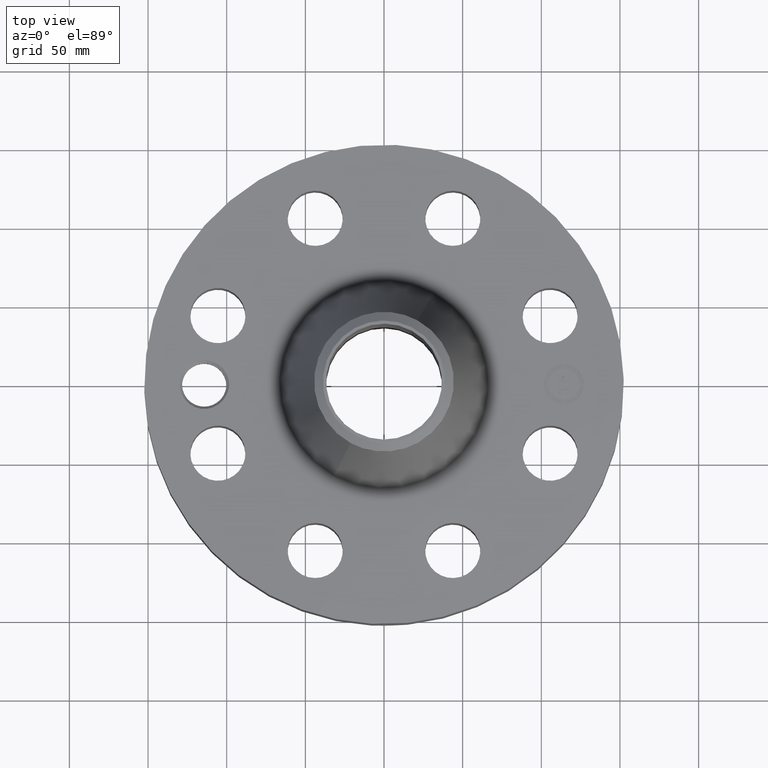
[diagram: clean part render]
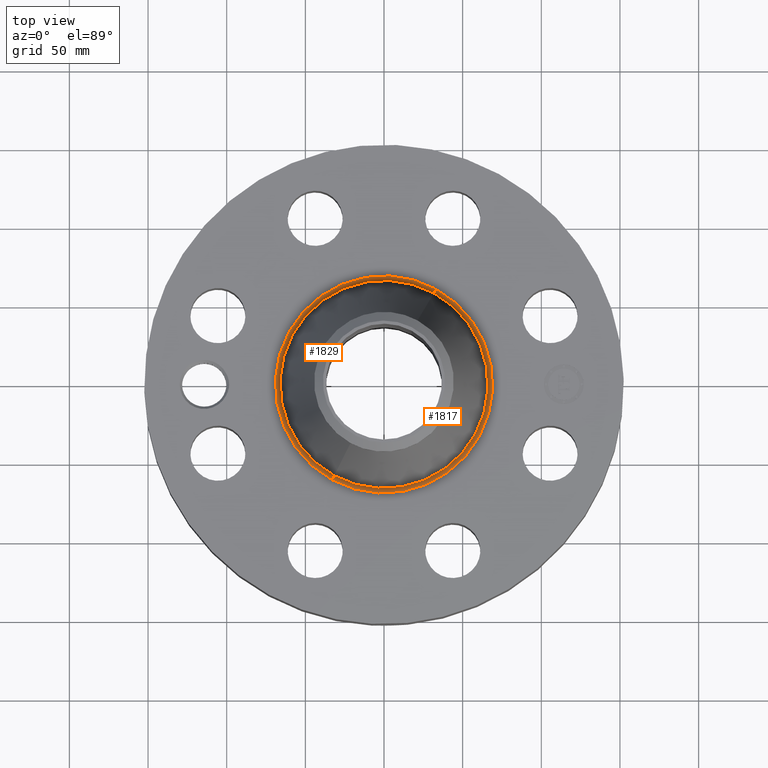
[diagram: same view with one multi-face feature highlighted, each face labeled with its STEP entity id]
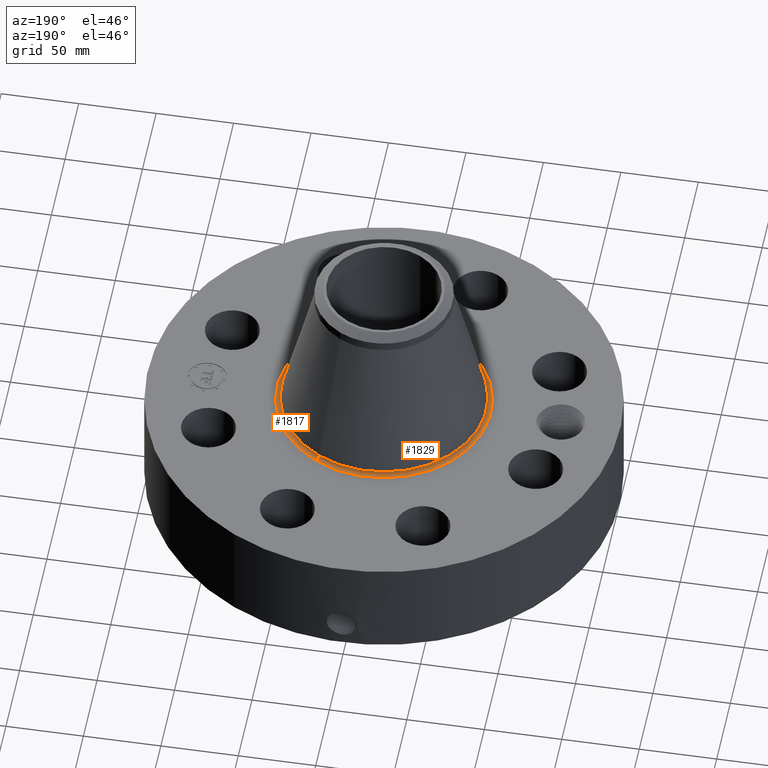
[diagram: same view with one multi-face feature highlighted, each face labeled with its STEP entity id]
A machine part, top view. The highlighted faces form ONE feature: a constant-radius fillet chain: 2 tangent blend faces with common blend radius 3.048 mm. The faces share edges in the B-rep.
A second angle (auxiliary view) of the same feature is appended — it is thin or edge-on in the first view.
Their STEP definitions:
[1] entity #1817 (Torus):
#576=AXIS2_PLACEMENT_3D('Circle Axis2P3D',#574,#575,$) ;
#1790=AXIS2_PLACEMENT_3D('Torus Axis2P3D',#1787,#1788,#1789) ;
#1794=AXIS2_PLACEMENT_3D('Circle Axis2P3D',#1792,#1793,$) ;
#1801=AXIS2_PLACEMENT_3D('Circle Axis2P3D',#1799,#1800,$) ;
#1808=AXIS2_PLACEMENT_3D('Circle Axis2P3D',#1806,#1807,$) ;
#569=CARTESIAN_POINT('Vertex',(-1.30369700467,-2.38640135989,2.87000000001)) ;
#571=CARTESIAN_POINT('Vertex',(1.30369700467,2.38640135989,2.87000000001)) ;
#574=CARTESIAN_POINT('Axis2P3D Location',(0.,0.,2.87000000001)) ;
#1787=CARTESIAN_POINT('Axis2P3D Location',(0.,0.,2.99000000001)) ;
#1792=CARTESIAN_POINT('Axis2P3D Location',(1.30369700467,2.38640135989,2.99000000001)) ;
#1796=CARTESIAN_POINT('Vertex',(1.24779873299,2.28408025991,2.96161381106)) ;
#1799=CARTESIAN_POINT('Axis2P3D Location',(0.,0.,2.96161381106)) ;
#1803=CARTESIAN_POINT('Vertex',(-1.24779873299,-2.28408025991,2.96161381106)) ;
#1806=CARTESIAN_POINT('Axis2P3D Location',(-1.30369700467,-2.38640135989,2.99000000001)) ;
#575=DIRECTION('Axis2P3D Direction',(0.,0.,-0.0393700787402)) ;
#1788=DIRECTION('Axis2P3D Direction',(0.,0.,-0.0393700787402)) ;
#1789=DIRECTION('Axis2P3D XDirection',(-0.0188750212049,-0.0345504945626,0.)) ;
#1793=DIRECTION('Axis2P3D Direction',(-0.0345504945626,0.0188750212049,0.)) ;
#1800=DIRECTION('Axis2P3D Direction',(0.,0.,-0.0393700787402)) ;
#1807=DIRECTION('Axis2P3D Direction',(0.0345504945626,-0.0188750212049,0.)) ;
#1812=ORIENTED_EDGE('',*,*,#578,.F.) ;
#1813=ORIENTED_EDGE('',*,*,#1798,.T.) ;
#1814=ORIENTED_EDGE('',*,*,#1805,.T.) ;
#1815=ORIENTED_EDGE('',*,*,#1810,.F.) ;
#1817=ADVANCED_FACE('PartBody',(#1816),#1791,.F.) ;
#577=CIRCLE('generated circle',#576,2.71928985775) ;
#1795=CIRCLE('generated circle',#1794,0.12) ;
#1802=CIRCLE('generated circle',#1801,2.60269558569) ;
#1809=CIRCLE('generated circle',#1808,0.12) ;
#1791=TOROIDAL_SURFACE('homeo Torus',#1790,2.71928985775,0.12) ;
#578=EDGE_CURVE('',#572,#570,#577,.T.) ;
#1798=EDGE_CURVE('',#572,#1797,#1795,.T.) ;
#1805=EDGE_CURVE('',#1797,#1804,#1802,.T.) ;
#1810=EDGE_CURVE('',#570,#1804,#1809,.T.) ;
#1811=EDGE_LOOP('',(#1812,#1813,#1814,#1815)) ;
#1816=FACE_OUTER_BOUND('',#1811,.T.) ;
#570=VERTEX_POINT('',#569) ;
#572=VERTEX_POINT('',#571) ;
#1797=VERTEX_POINT('',#1796) ;
#1804=VERTEX_POINT('',#1803) ;
[2] entity #1829 (Torus):
#567=AXIS2_PLACEMENT_3D('Circle Axis2P3D',#565,#566,$) ;
#1790=AXIS2_PLACEMENT_3D('Torus Axis2P3D',#1787,#1788,#1789) ;
#1794=AXIS2_PLACEMENT_3D('Circle Axis2P3D',#1792,#1793,$) ;
#1808=AXIS2_PLACEMENT_3D('Circle Axis2P3D',#1806,#1807,$) ;
#1820=AXIS2_PLACEMENT_3D('Circle Axis2P3D',#1818,#1819,$) ;
#565=CARTESIAN_POINT('Axis2P3D Location',(0.,0.,2.87000000001)) ;
#569=CARTESIAN_POINT('Vertex',(-1.30369700467,-2.38640135989,2.87000000001)) ;
#571=CARTESIAN_POINT('Vertex',(1.30369700467,2.38640135989,2.87000000001)) ;
#1787=CARTESIAN_POINT('Axis2P3D Location',(0.,0.,2.99000000001)) ;
#1792=CARTESIAN_POINT('Axis2P3D Location',(1.30369700467,2.38640135989,2.99000000001)) ;
#1796=CARTESIAN_POINT('Vertex',(1.24779873299,2.28408025991,2.96161381106)) ;
#1803=CARTESIAN_POINT('Vertex',(-1.24779873299,-2.28408025991,2.96161381106)) ;
#1806=CARTESIAN_POINT('Axis2P3D Location',(-1.30369700467,-2.38640135989,2.99000000001)) ;
#1818=CARTESIAN_POINT('Axis2P3D Location',(0.,0.,2.96161381106)) ;
#566=DIRECTION('Axis2P3D Direction',(0.,0.,-0.0393700787402)) ;
#1788=DIRECTION('Axis2P3D Direction',(0.,0.,-0.0393700787402)) ;
#1789=DIRECTION('Axis2P3D XDirection',(-0.0188750212049,-0.0345504945626,0.)) ;
#1793=DIRECTION('Axis2P3D Direction',(-0.0345504945626,0.0188750212049,0.)) ;
#1807=DIRECTION('Axis2P3D Direction',(0.0345504945626,-0.0188750212049,0.)) ;
#1819=DIRECTION('Axis2P3D Direction',(0.,0.,-0.0393700787402)) ;
#1824=ORIENTED_EDGE('',*,*,#573,.F.) ;
#1825=ORIENTED_EDGE('',*,*,#1810,.T.) ;
#1826=ORIENTED_EDGE('',*,*,#1822,.T.) ;
#1827=ORIENTED_EDGE('',*,*,#1798,.F.) ;
#1829=ADVANCED_FACE('PartBody',(#1828),#1791,.F.) ;
#568=CIRCLE('generated circle',#567,2.71928985775) ;
#1795=CIRCLE('generated circle',#1794,0.12) ;
#1809=CIRCLE('generated circle',#1808,0.12) ;
#1821=CIRCLE('generated circle',#1820,2.60269558569) ;
#1791=TOROIDAL_SURFACE('homeo Torus',#1790,2.71928985775,0.12) ;
#573=EDGE_CURVE('',#570,#572,#568,.T.) ;
#1798=EDGE_CURVE('',#572,#1797,#1795,.T.) ;
#1810=EDGE_CURVE('',#570,#1804,#1809,.T.) ;
#1822=EDGE_CURVE('',#1804,#1797,#1821,.T.) ;
#1823=EDGE_LOOP('',(#1824,#1825,#1826,#1827)) ;
#1828=FACE_OUTER_BOUND('',#1823,.T.) ;
#570=VERTEX_POINT('',#569) ;
#572=VERTEX_POINT('',#571) ;
#1797=VERTEX_POINT('',#1796) ;
#1804=VERTEX_POINT('',#1803) ;